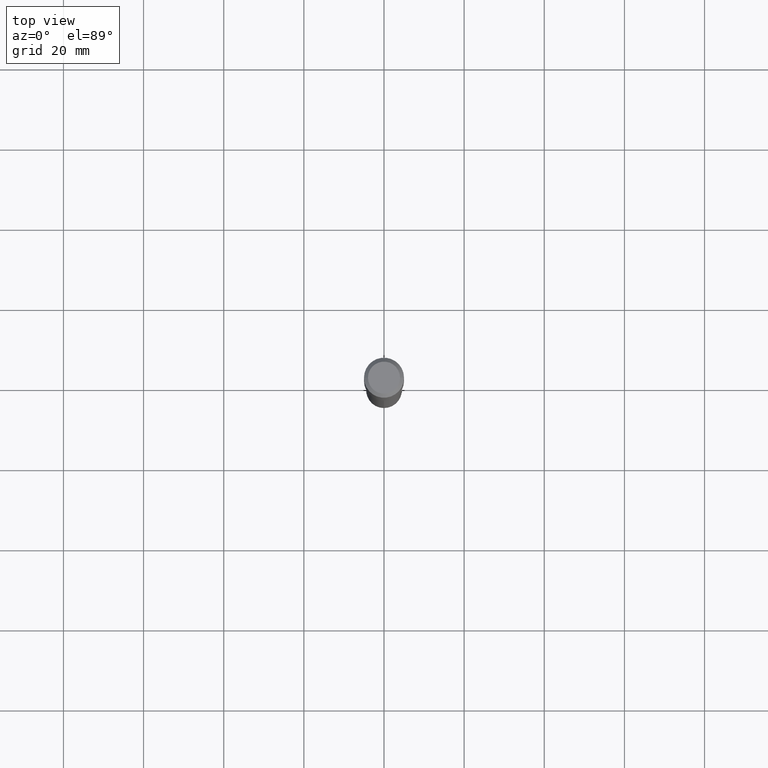
[diagram: clean part render]
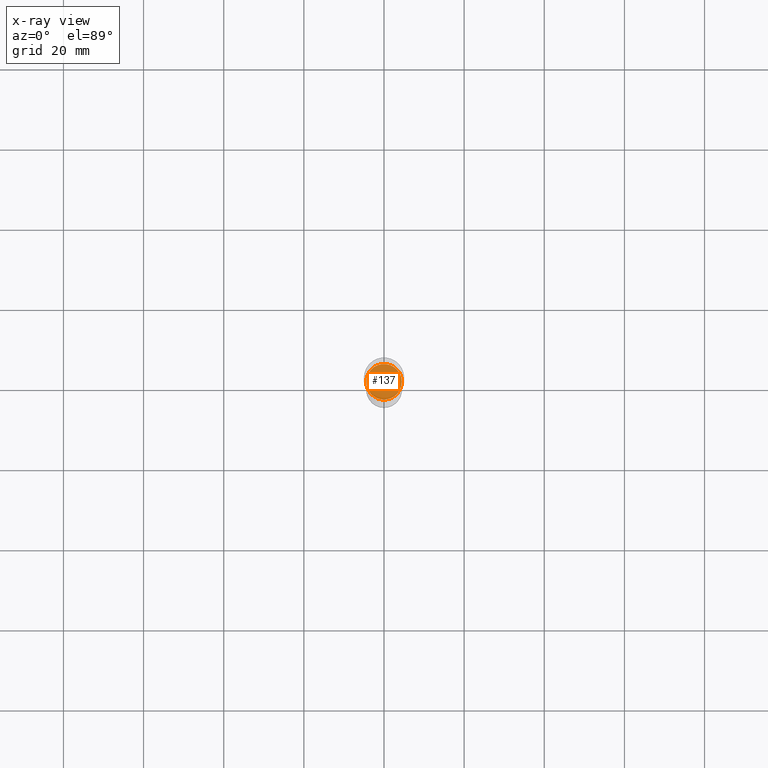
[diagram: x-ray — body ghosted, one internal face saturated and labeled with its STEP entity id]
A machine part, top view, then the same camera in x-ray: the body is ghosted and one INTERNAL B-rep face — a face not visible from any outside direction — is saturated and labeled: STEP entity #137.
In plain terms, the highlighted planar face has unit normal (-0, 0, 1).
Its self-contained STEP definition (entity closure, byte-faithful):
#29 = DIRECTION ( 'NONE',  ( -2.445468806185136597E-29, 3.491481338843145583E-15, 1.000000000000000000 ) ) ;
#56 = DIRECTION ( 'NONE',  ( -2.438088387897960049E-29, 3.491481338843145188E-15, 1.000000000000000000 ) ) ;
#61 = DIRECTION ( 'NONE',  ( 1.000000000000000000, -6.982962677686265922E-15, 0.000000000000000000 ) ) ;
#63 = DIRECTION ( 'NONE',  ( 1.000000000000000000, -6.982962677686265922E-15, 4.876176775795935793E-29 ) ) ;
#90 = FACE_OUTER_BOUND ( 'NONE', #177, .T. ) ;
#108 = CARTESIAN_POINT ( 'NONE',  ( 5.809455695973411003E-29, -8.294363068555777500E-15, -2.375600000000000378 ) ) ;
#137 = ADVANCED_FACE ( 'NONE', ( #90 ), #381, .F. ) ;
#146 = CIRCLE ( 'NONE', #222, 0.1746999999999999942 ) ;
#174 = CARTESIAN_POINT ( 'NONE',  ( 5.809455695973411003E-29, -8.294363068555777500E-15, -2.375600000000000378 ) ) ;
#177 = EDGE_LOOP ( 'NONE', ( #446, #460 ) ) ;
#179 = DIRECTION ( 'NONE',  ( 1.000000000000000000, -6.982962677686265922E-15, 0.000000000000000000 ) ) ;
#211 = CIRCLE ( 'NONE', #300, 0.1746999999999999942 ) ;
#217 = VERTEX_POINT ( 'NONE', #425 ) ;
#220 = CARTESIAN_POINT ( 'NONE',  ( -0.1746999999999999942, -7.050395682008770724E-15, -2.375600000000000378 ) ) ;
#222 = AXIS2_PLACEMENT_3D ( 'NONE', #245, #29, #61 ) ;
#240 = EDGE_CURVE ( 'NONE', #291, #217, #211, .T. ) ;
#245 = CARTESIAN_POINT ( 'NONE',  ( 5.809455695973411003E-29, -8.294363068555777500E-15, -2.375600000000000378 ) ) ;
#255 = AXIS2_PLACEMENT_3D ( 'NONE', #174, #56, #63 ) ;
#271 = EDGE_CURVE ( 'NONE', #217, #291, #146, .T. ) ;
#291 = VERTEX_POINT ( 'NONE', #220 ) ;
#300 = AXIS2_PLACEMENT_3D ( 'NONE', #108, #362, #179 ) ;
#362 = DIRECTION ( 'NONE',  ( -2.445468806185136597E-29, 3.491481338843145583E-15, 1.000000000000000000 ) ) ;
#381 = PLANE ( 'NONE',  #255 ) ;
#425 = CARTESIAN_POINT ( 'NONE',  ( 0.1746999999999999942, -9.514286648347568370E-15, -2.375600000000000378 ) ) ;
#446 = ORIENTED_EDGE ( 'NONE', *, *, #271, .F. ) ;
#460 = ORIENTED_EDGE ( 'NONE', *, *, #240, .F. ) ;